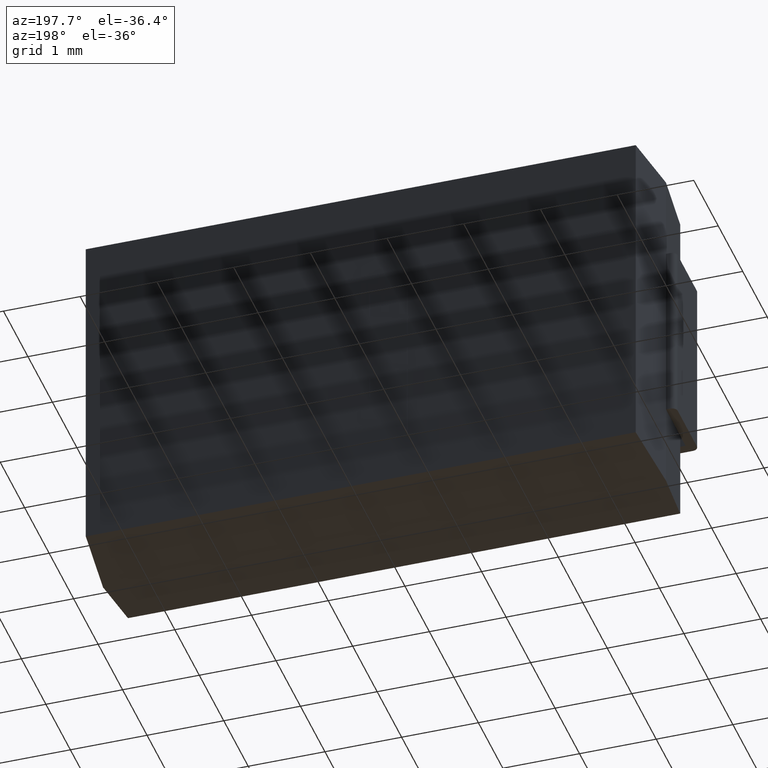
[diagram: clean part render]
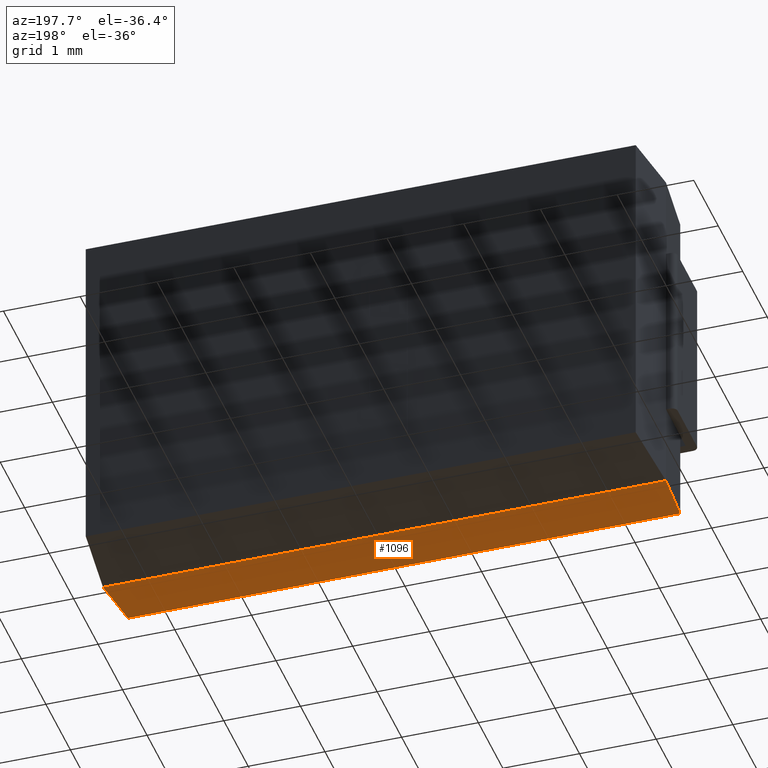
[diagram: same view with one face highlighted and labeled with its STEP entity id]
A machine part, auxiliary view. The second image highlights one B-rep face of the part: STEP entity #1096.
In plain terms, the highlighted planar face has unit normal (0, -0.0872, -0.9962).
Its self-contained STEP definition (entity closure, byte-faithful):
#159 = EDGE_CURVE ( 'NONE', #2749, #2477, #2949, .T. ) ;
#246 = LINE ( 'NONE', #2397, #1377 ) ;
#260 = VERTEX_POINT ( 'NONE', #3721 ) ;
#289 = CARTESIAN_POINT ( 'NONE',  ( -8.673617379884035500E-016, 0.8000000000000000400, -4.599999999999999600 ) ) ;
#332 = ORIENTED_EDGE ( 'NONE', *, *, #701, .F. ) ;
#607 = DIRECTION ( 'NONE',  ( 0.08682659386424780600, -0.9924325091389669700, 0.08682659386424779200 ) ) ;
#701 = EDGE_CURVE ( 'NONE', #1958, #2477, #246, .T. ) ;
#728 = AXIS2_PLACEMENT_3D ( 'NONE', #1156, #1986, #1451 ) ;
#841 = EDGE_CURVE ( 'NONE', #260, #1958, #3536, .T. ) ;
#843 = DIRECTION ( 'NONE',  ( -0.08682659386424779200, -0.9924325091389669700, 0.08682659386424779200 ) ) ;
#982 = FACE_OUTER_BOUND ( 'NONE', #2131, .T. ) ;
#1082 = EDGE_CURVE ( 'NONE', #260, #2749, #2865, .T. ) ;
#1096 = ADVANCED_FACE ( 'NONE', ( #982 ), #3525, .T. ) ;
#1156 = CARTESIAN_POINT ( 'NONE',  ( -8.673617379884035500E-016, 0.8000000000000000400, -4.599999999999999600 ) ) ;
#1230 = ORIENTED_EDGE ( 'NONE', *, *, #841, .F. ) ;
#1271 = CARTESIAN_POINT ( 'NONE',  ( 0.0000000000000000000, 0.0000000000000000000, -4.530009069179260300 ) ) ;
#1349 = VECTOR ( 'NONE', #3627, 1000.000000000000000 ) ;
#1377 = VECTOR ( 'NONE', #607, 1000.000000000000100 ) ;
#1385 = ORIENTED_EDGE ( 'NONE', *, *, #1082, .T. ) ;
#1451 = DIRECTION ( 'NONE',  ( 0.0000000000000000000, 0.9961946980917455500, -0.08715574274765836000 ) ) ;
#1958 = VERTEX_POINT ( 'NONE', #289 ) ;
#1959 = DIRECTION ( 'NONE',  ( -1.000000000000000000, -0.0000000000000000000, -0.0000000000000000000 ) ) ;
#1986 = DIRECTION ( 'NONE',  ( 0.0000000000000000000, -0.08715574274765836000, -0.9961946980917455500 ) ) ;
#2021 = CARTESIAN_POINT ( 'NONE',  ( 7.284664786668827200, 0.1675156174402485900, -4.544664786668827900 ) ) ;
#2131 = EDGE_LOOP ( 'NONE', ( #3895, #332, #1230, #1385 ) ) ;
#2327 = VECTOR ( 'NONE', #1959, 1000.000000000000000 ) ;
#2397 = CARTESIAN_POINT ( 'NONE',  ( 0.03467874404950747900, 0.4036201417200468400, -4.565321255950491900 ) ) ;
#2477 = VERTEX_POINT ( 'NONE', #2672 ) ;
#2672 = CARTESIAN_POINT ( 'NONE',  ( 0.06999093082073851200, 0.0000000000000000000, -4.530009069179260300 ) ) ;
#2749 = VERTEX_POINT ( 'NONE', #3222 ) ;
#2865 = LINE ( 'NONE', #2021, #3424 ) ;
#2949 = LINE ( 'NONE', #1271, #1349 ) ;
#3222 = CARTESIAN_POINT ( 'NONE',  ( 7.270009069179259600, 0.0000000000000000000, -4.530009069179260300 ) ) ;
#3424 = VECTOR ( 'NONE', #843, 1000.000000000000100 ) ;
#3525 = PLANE ( 'NONE',  #728 ) ;
#3536 = LINE ( 'NONE', #3775, #2327 ) ;
#3627 = DIRECTION ( 'NONE',  ( -1.000000000000000000, -0.0000000000000000000, -0.0000000000000000000 ) ) ;
#3721 = CARTESIAN_POINT ( 'NONE',  ( 7.339999999999999000, 0.8000000000000000400, -4.599999999999999600 ) ) ;
#3775 = CARTESIAN_POINT ( 'NONE',  ( -8.673617379884035500E-016, 0.8000000000000000400, -4.599999999999999600 ) ) ;
#3895 = ORIENTED_EDGE ( 'NONE', *, *, #159, .T. ) ;